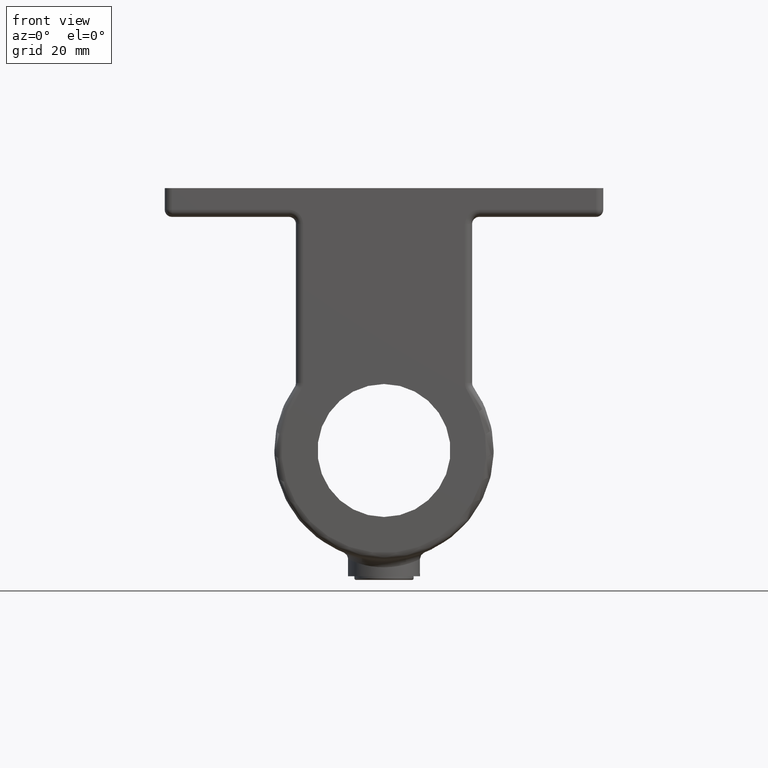
[diagram: clean part render]
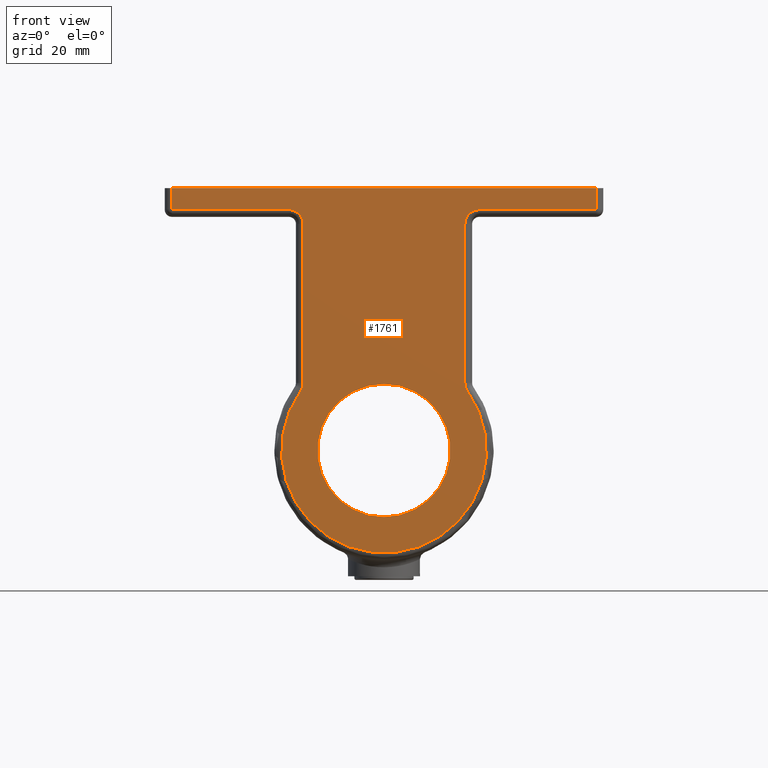
[diagram: same view with one face highlighted and labeled with its STEP entity id]
A machine part, front view. The second image highlights one B-rep face of the part: STEP entity #1761.
In plain terms, the highlighted planar face has unit normal (0, 1, 0).
Its self-contained STEP definition (entity closure, byte-faithful):
#53 = LINE ( 'NONE', #483, #2994 ) ;
#80 = DIRECTION ( 'NONE',  ( 0.000000000000000000, 0.000000000000000000, 1.000000000000000000 ) ) ;
#115 = LINE ( 'NONE', #1572, #4078 ) ;
#175 = EDGE_CURVE ( 'NONE', #2365, #3140, #2121, .T. ) ;
#186 = CARTESIAN_POINT ( 'NONE',  ( 0.000000000000000000, -35.00000000000000000, -83.50000000000000000 ) ) ;
#299 = PLANE ( 'NONE',  #1406 ) ;
#305 = CARTESIAN_POINT ( 'NONE',  ( -22.50000000000000355, -35.00000000000000000, -2.000000000009549694 ) ) ;
#363 = AXIS2_PLACEMENT_3D ( 'NONE', #2091, #1352, #977 ) ;
#373 = DIRECTION ( 'NONE',  ( 0.000000000000000000, -0.000000000000000000, 1.000000000000000000 ) ) ;
#406 = VERTEX_POINT ( 'NONE', #1323 ) ;
#426 = DIRECTION ( 'NONE',  ( 1.000000000000000000, 0.000000000000000000, 0.000000000000000000 ) ) ;
#431 = DIRECTION ( 'NONE',  ( 1.000000000000000000, -0.000000000000000000, 0.000000000000000000 ) ) ;
#483 = CARTESIAN_POINT ( 'NONE',  ( 58.99999999999998579, -35.00000000000000000, 8.000000000000000000 ) ) ;
#552 = DIRECTION ( 'NONE',  ( -0.000000000000000000, 0.000000000000000000, -1.000000000000000000 ) ) ;
#567 = DIRECTION ( 'NONE',  ( 0.000000000000000000, -0.000000000000000000, 1.000000000000000000 ) ) ;
#574 = CARTESIAN_POINT ( 'NONE',  ( -59.00000000000001421, -35.00000000000000000, 8.000000000000000000 ) ) ;
#601 = ORIENTED_EDGE ( 'NONE', *, *, #175, .F. ) ;
#731 = EDGE_LOOP ( 'NONE', ( #1947 ) ) ;
#746 = DIRECTION ( 'NONE',  ( 0.000000000000000000, 0.000000000000000000, -1.000000000000000000 ) ) ;
#753 = ORIENTED_EDGE ( 'NONE', *, *, #1552, .F. ) ;
#812 = VERTEX_POINT ( 'NONE', #4932 ) ;
#849 = DIRECTION ( 'NONE',  ( -0.000000000000000000, -1.000000000000000000, -0.000000000000000000 ) ) ;
#886 = EDGE_CURVE ( 'NONE', #2365, #1696, #115, .T. ) ;
#897 = DIRECTION ( 'NONE',  ( -0.000000000000000000, -0.000000000000000000, 1.000000000000000000 ) ) ;
#961 = AXIS2_PLACEMENT_3D ( 'NONE', #1533, #4570, #746 ) ;
#977 = DIRECTION ( 'NONE',  ( 0.000000000000000000, 0.000000000000000000, 1.000000000000000000 ) ) ;
#993 = EDGE_CURVE ( 'NONE', #2887, #1695, #2780, .T. ) ;
#1007 = DIRECTION ( 'NONE',  ( -0.000000000000000000, -1.000000000000000000, -0.000000000000000000 ) ) ;
#1101 = CARTESIAN_POINT ( 'NONE',  ( 22.50000000000000711, -35.00000000000000000, -2.000000000009549694 ) ) ;
#1105 = CIRCLE ( 'NONE', #4962, 3.999999999999996447 ) ;
#1244 = CARTESIAN_POINT ( 'NONE',  ( -61.00000000000001421, -35.00000000000000000, 2.000000000000000000 ) ) ;
#1323 = CARTESIAN_POINT ( 'NONE',  ( 26.50000000000000000, -35.00000000000000000, 2.000000000000000000 ) ) ;
#1326 = VECTOR ( 'NONE', #1415, 1000.000000000000000 ) ;
#1341 = EDGE_CURVE ( 'NONE', #406, #4375, #4013, .T. ) ;
#1352 = DIRECTION ( 'NONE',  ( -0.000000000000000000, -1.000000000000000000, -0.000000000000000000 ) ) ;
#1406 = AXIS2_PLACEMENT_3D ( 'NONE', #1481, #4535, #373 ) ;
#1415 = DIRECTION ( 'NONE',  ( 1.000000000000000000, -0.000000000000000000, 0.000000000000000000 ) ) ;
#1436 = EDGE_CURVE ( 'NONE', #406, #1695, #3425, .T. ) ;
#1481 = CARTESIAN_POINT ( 'NONE',  ( -61.00000000000001421, -35.00000000000000000, 8.000000000000000000 ) ) ;
#1510 = VERTEX_POINT ( 'NONE', #2388 ) ;
#1525 = CARTESIAN_POINT ( 'NONE',  ( -59.00000000000001421, -35.00000000000000000, 2.000000000000000000 ) ) ;
#1533 = CARTESIAN_POINT ( 'NONE',  ( 0.000000000000000000, -35.00000000000000000, -65.00000000000000000 ) ) ;
#1552 = EDGE_CURVE ( 'NONE', #2157, #1510, #4675, .T. ) ;
#1560 = DIRECTION ( 'NONE',  ( -0.000000000000000000, -1.000000000000000000, -0.000000000000000000 ) ) ;
#1572 = CARTESIAN_POINT ( 'NONE',  ( -59.00000000000001421, -35.00000000000000000, 8.000000000000000000 ) ) ;
#1585 = FACE_OUTER_BOUND ( 'NONE', #2802, .T. ) ;
#1620 = VERTEX_POINT ( 'NONE', #2883 ) ;
#1691 = FACE_BOUND ( 'NONE', #731, .T. ) ;
#1695 = VERTEX_POINT ( 'NONE', #1101 ) ;
#1696 = VERTEX_POINT ( 'NONE', #1525 ) ;
#1722 = CARTESIAN_POINT ( 'NONE',  ( 22.50000000000000711, -35.00000000000000000, 8.000000000000000000 ) ) ;
#1750 = ORIENTED_EDGE ( 'NONE', *, *, #993, .T. ) ;
#1751 = VECTOR ( 'NONE', #431, 1000.000000000000000 ) ;
#1761 = ADVANCED_FACE ( 'NONE', ( #1691, #1585 ), #299, .F. ) ;
#1770 = AXIS2_PLACEMENT_3D ( 'NONE', #2797, #2040, #80 ) ;
#1910 = EDGE_CURVE ( 'NONE', #2887, #2070, #3485, .T. ) ;
#1947 = ORIENTED_EDGE ( 'NONE', *, *, #4738, .F. ) ;
#1996 = DIRECTION ( 'NONE',  ( 0.000000000000000000, 0.000000000000000000, 1.000000000000000000 ) ) ;
#2040 = DIRECTION ( 'NONE',  ( -0.000000000000000000, -1.000000000000000000, -0.000000000000000000 ) ) ;
#2070 = VERTEX_POINT ( 'NONE', #3281 ) ;
#2091 = CARTESIAN_POINT ( 'NONE',  ( -26.50000000000000000, -35.00000000000000000, -2.000000000009549694 ) ) ;
#2121 = LINE ( 'NONE', #4286, #3090 ) ;
#2157 = VERTEX_POINT ( 'NONE', #305 ) ;
#2365 = VERTEX_POINT ( 'NONE', #574 ) ;
#2386 = ORIENTED_EDGE ( 'NONE', *, *, #1436, .F. ) ;
#2388 = CARTESIAN_POINT ( 'NONE',  ( -26.50000000000000000, -35.00000000000000000, 2.000000000000000000 ) ) ;
#2431 = ORIENTED_EDGE ( 'NONE', *, *, #4032, .F. ) ;
#2454 = CIRCLE ( 'NONE', #3313, 28.49999999999999645 ) ;
#2489 = EDGE_CURVE ( 'NONE', #4375, #3140, #53, .T. ) ;
#2535 = DIRECTION ( 'NONE',  ( -0.000000000000000000, 0.000000000000000000, -1.000000000000000000 ) ) ;
#2780 = LINE ( 'NONE', #1722, #4937 ) ;
#2797 = CARTESIAN_POINT ( 'NONE',  ( 26.50000000000000000, -35.00000000000000000, -2.000000000009549694 ) ) ;
#2802 = EDGE_LOOP ( 'NONE', ( #4756, #3403, #601, #4009, #3436, #753, #4665, #2431, #3599, #4857, #1750, #2386 ) ) ;
#2883 = CARTESIAN_POINT ( 'NONE',  ( -22.50000000000000355, -35.00000000000000000, -46.18511227777321437 ) ) ;
#2887 = VERTEX_POINT ( 'NONE', #4165 ) ;
#2891 = LINE ( 'NONE', #4864, #3083 ) ;
#2994 = VECTOR ( 'NONE', #897, 1000.000000000000000 ) ;
#3083 = VECTOR ( 'NONE', #2535, 1000.000000000000000 ) ;
#3090 = VECTOR ( 'NONE', #426, 1000.000000000000000 ) ;
#3140 = VERTEX_POINT ( 'NONE', #4758 ) ;
#3281 = CARTESIAN_POINT ( 'NONE',  ( 23.23846153846153229, -35.00000000000000000, -48.50079076666266786 ) ) ;
#3310 = CARTESIAN_POINT ( 'NONE',  ( -26.49999999999999289, -35.00000000000000000, -46.18511227777321437 ) ) ;
#3313 = AXIS2_PLACEMENT_3D ( 'NONE', #3850, #849, #3970 ) ;
#3340 = DIRECTION ( 'NONE',  ( 0.000000000000000000, 0.000000000000000000, 1.000000000000000000 ) ) ;
#3403 = ORIENTED_EDGE ( 'NONE', *, *, #2489, .T. ) ;
#3425 = CIRCLE ( 'NONE', #1770, 4.000000000000000000 ) ;
#3436 = ORIENTED_EDGE ( 'NONE', *, *, #4622, .T. ) ;
#3485 = CIRCLE ( 'NONE', #4955, 3.999999999999996447 ) ;
#3599 = ORIENTED_EDGE ( 'NONE', *, *, #4913, .T. ) ;
#3742 = CARTESIAN_POINT ( 'NONE',  ( -61.00000000000001421, -35.00000000000000000, 2.000000000000000000 ) ) ;
#3842 = CARTESIAN_POINT ( 'NONE',  ( 26.49999999999999289, -35.00000000000000000, -46.18511227777321437 ) ) ;
#3850 = CARTESIAN_POINT ( 'NONE',  ( 0.000000000000000000, -35.00000000000000000, -65.00000000000000000 ) ) ;
#3914 = EDGE_CURVE ( 'NONE', #2157, #1620, #2891, .T. ) ;
#3970 = DIRECTION ( 'NONE',  ( 0.000000000000000000, 0.000000000000000000, 1.000000000000000000 ) ) ;
#4009 = ORIENTED_EDGE ( 'NONE', *, *, #886, .T. ) ;
#4013 = LINE ( 'NONE', #1244, #1751 ) ;
#4032 = EDGE_CURVE ( 'NONE', #812, #1620, #1105, .T. ) ;
#4078 = VECTOR ( 'NONE', #552, 1000.000000000000000 ) ;
#4165 = CARTESIAN_POINT ( 'NONE',  ( 22.50000000000000711, -35.00000000000000000, -46.18511227777321437 ) ) ;
#4286 = CARTESIAN_POINT ( 'NONE',  ( -61.00000000000001421, -35.00000000000000000, 8.000000000000000000 ) ) ;
#4372 = VERTEX_POINT ( 'NONE', #186 ) ;
#4375 = VERTEX_POINT ( 'NONE', #4578 ) ;
#4506 = LINE ( 'NONE', #3742, #1326 ) ;
#4535 = DIRECTION ( 'NONE',  ( 0.000000000000000000, 1.000000000000000000, 0.000000000000000000 ) ) ;
#4570 = DIRECTION ( 'NONE',  ( 0.000000000000000000, -1.000000000000000000, 0.000000000000000000 ) ) ;
#4578 = CARTESIAN_POINT ( 'NONE',  ( 58.99999999999999289, -35.00000000000000000, 2.000000000000000000 ) ) ;
#4622 = EDGE_CURVE ( 'NONE', #1696, #1510, #4506, .T. ) ;
#4665 = ORIENTED_EDGE ( 'NONE', *, *, #3914, .T. ) ;
#4675 = CIRCLE ( 'NONE', #363, 4.000000000000000000 ) ;
#4681 = CIRCLE ( 'NONE', #961, 18.50000000000000355 ) ;
#4738 = EDGE_CURVE ( 'NONE', #4372, #4372, #4681, .T. ) ;
#4756 = ORIENTED_EDGE ( 'NONE', *, *, #1341, .T. ) ;
#4758 = CARTESIAN_POINT ( 'NONE',  ( 58.99999999999995737, -35.00000000000000000, 8.000000000000000000 ) ) ;
#4857 = ORIENTED_EDGE ( 'NONE', *, *, #1910, .F. ) ;
#4864 = CARTESIAN_POINT ( 'NONE',  ( -22.50000000000000711, -35.00000000000000000, 8.000000000000000000 ) ) ;
#4913 = EDGE_CURVE ( 'NONE', #812, #2070, #2454, .T. ) ;
#4932 = CARTESIAN_POINT ( 'NONE',  ( -23.23846153846153229, -35.00000000000000000, -48.50079076666266786 ) ) ;
#4937 = VECTOR ( 'NONE', #567, 1000.000000000000000 ) ;
#4955 = AXIS2_PLACEMENT_3D ( 'NONE', #3842, #1560, #1996 ) ;
#4962 = AXIS2_PLACEMENT_3D ( 'NONE', #3310, #1007, #3340 ) ;